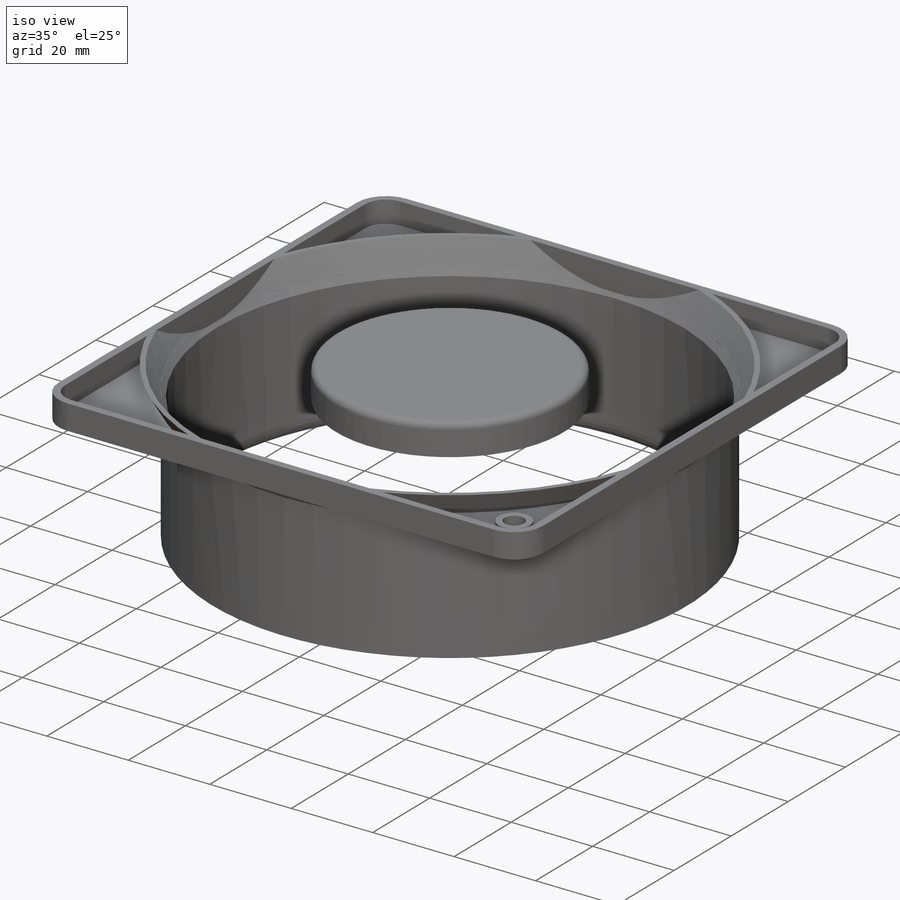
[diagram: iso view]
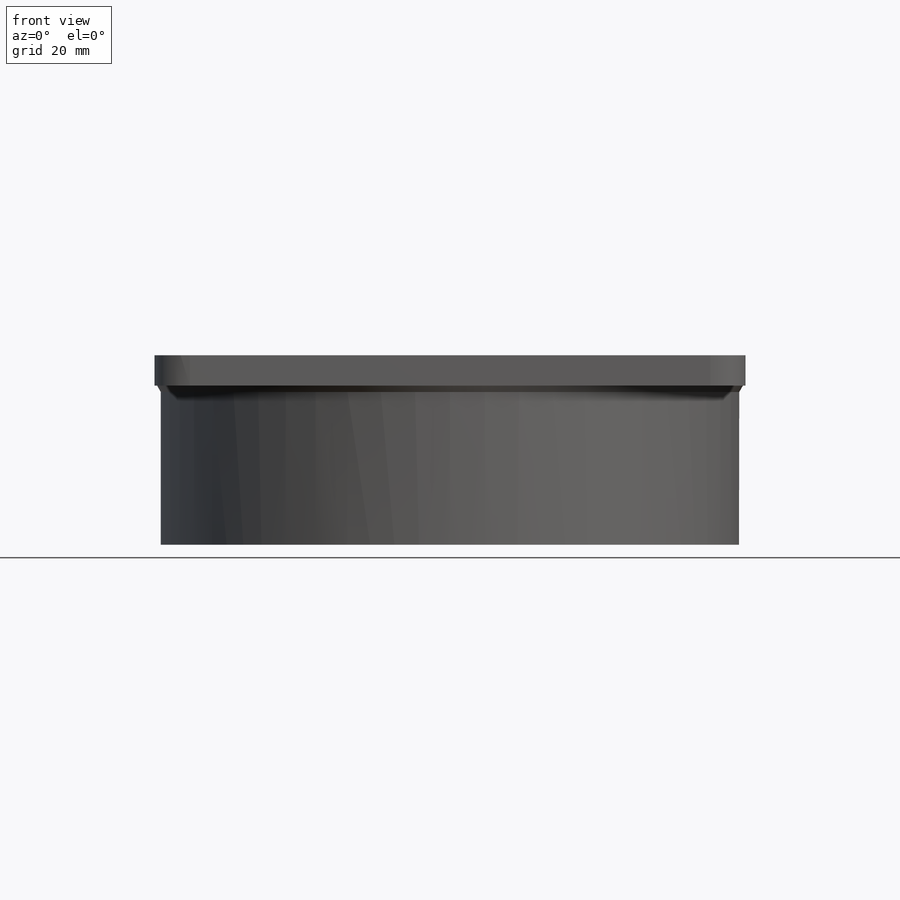
[diagram: front view]
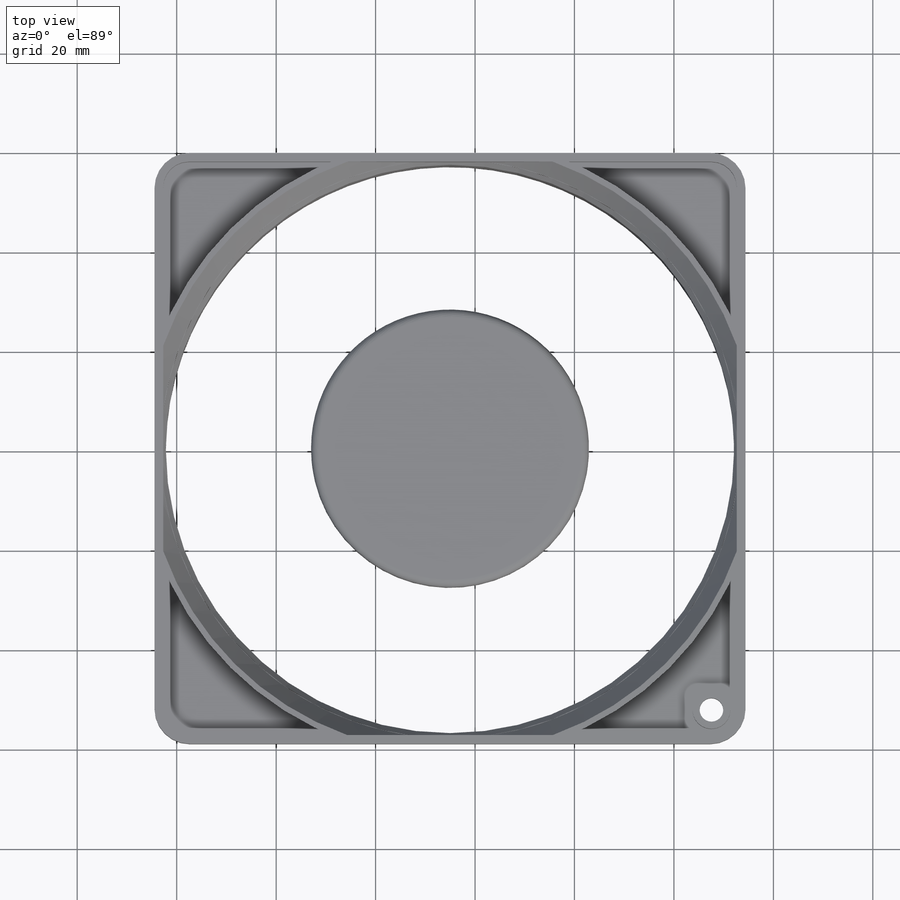
[diagram: top view]
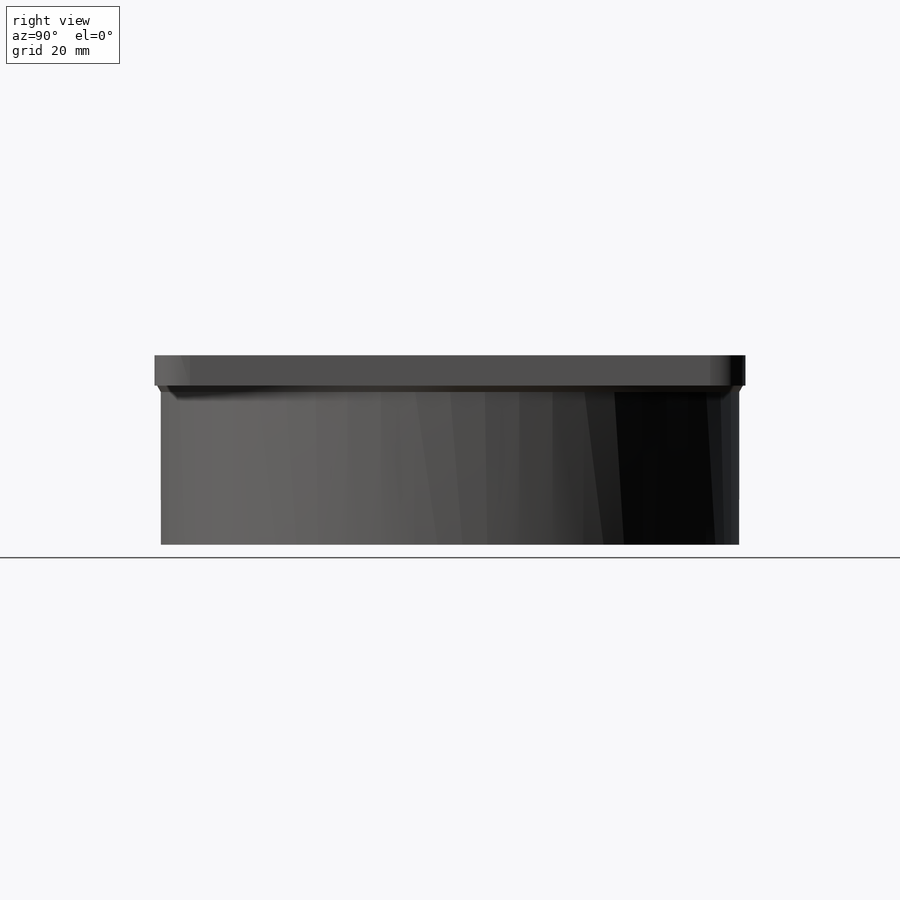
[diagram: right view]
SOLIDWORKS PART (.sldprt)
format: sldprt  version: not decoded by parser v0  size: 402,432 bytes
history: native  units: mm
features: extrude x10, sketch x9, plane x7, fillet x5, hole x3, material x1, revolve x1, pattern_circular x1, mirror x1 (+11 scaffold rows collapsed)
feature tree (49):
  scaffold x11  (default folders/planes/origin — collapsed)
  material  "Material <not specified>"
  plane  "Plane1"
  sketch  "Sketch1"  dims[D6=4.572mm D1=1.016mm D2=1.016mm D3=150.0deg D4=90.0deg D5=90.0deg D7=57.15mm]
  revolve  "Revolution1"  Angle=360deg
  plane  "Plane2"
  sketch  "Sketch2"  dims[D3=0.0001mm D4=0.0001mm D5=0.0001mm D6=0.0001mm D7=0.0001mm D8=0.0001mm D9=0.0001mm D10=0.0001mm D1=118.872mm D2=118.872mm]
  extrude  "Extrusion1"  Depth=0mm
  sketch  "Sketch3"  dims[D1=1.778mm]
  extrude  "Extrusion4"  [1 undecoded]
  extrude  "Boss-Extrude136"  Depth=6.096mm
  fillet  "Fillet2"  [1 undecoded]
  fillet  "Fillet137"  Radius=5.08mm
  fillet  "Fillet3"  [1 undecoded]
  fillet  "Fillet13838"  Radius=7.112mm
  sketch  "Sketch4"
  extrude  "Extrusion5"  [1 undecoded]
  extrude  "Boss-Extrude13739"  Depth=0.762mm
  plane  "Plane3"
  sketch  "Sketch5"  dims[D1=7.62mm]
  extrude  "Extrusion6"  [1 undecoded]
  extrude  "Boss-Extrude1374034"  [1 undecoded]
  extrude  "Boss-Extrude1374040"  Depth=4.7498mm
  hole  "Hole1"  Diameter=4.7498mm Depth=37.5158mm
  sketch  "Sketch7"
  sketch  "Sketch6"  dims[Diameter=4.7498mm Depth=37.5158mm]
  hole  "Hole135"  [1 undecoded]
  hole  "Hole141"  [1 undecoded]
  plane  "Plane4"
  plane  "Plane5"
  pattern_circular  "CirPattern1"  Count=4 Angle=90deg
  plane  "Plane6"
  mirror  "Mirror1"
  sketch  "Sketch8"  dims[D1=55.88mm]
  extrude  "Extrusion7"  Depth=7.62mm
  fillet  "Fillet4"  Radius=1.524mm
  plane  "Plane7"
  sketch  "Sketch9"
  extrude  "Extrusion9"  Depth=3.048mm
decode coverage: 18 of 30 modeling features carry decoded parameters
note: 8 parameter values undecoded
summary: no parameter record found for 8 features | [note 3] (x8 features) parser:v0:name_prior (class ref resolved by constrained assignment + name prior)
note: suppression state not decoded; provenance and decode notes live in map.json
